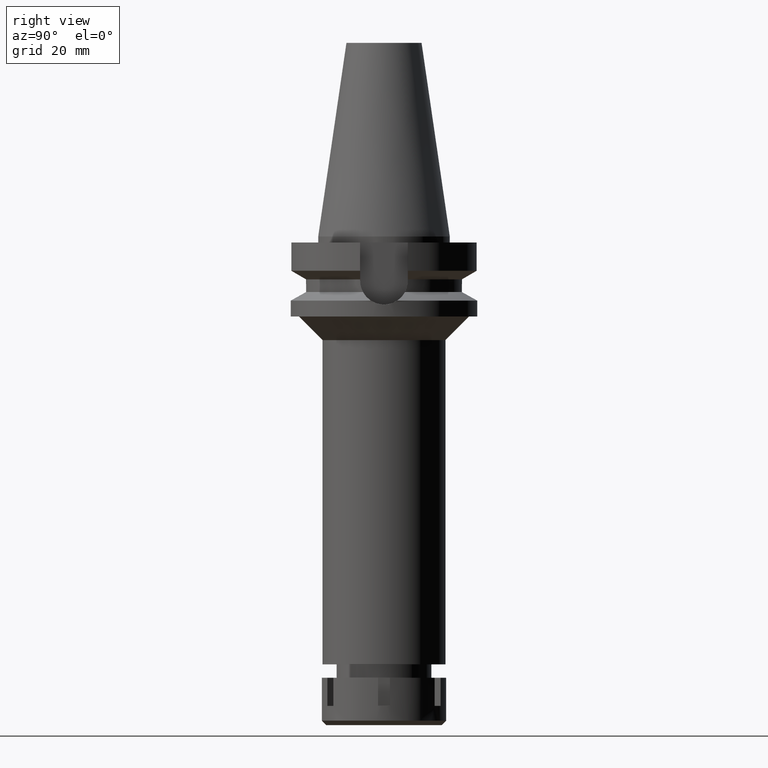
[diagram: clean part render]
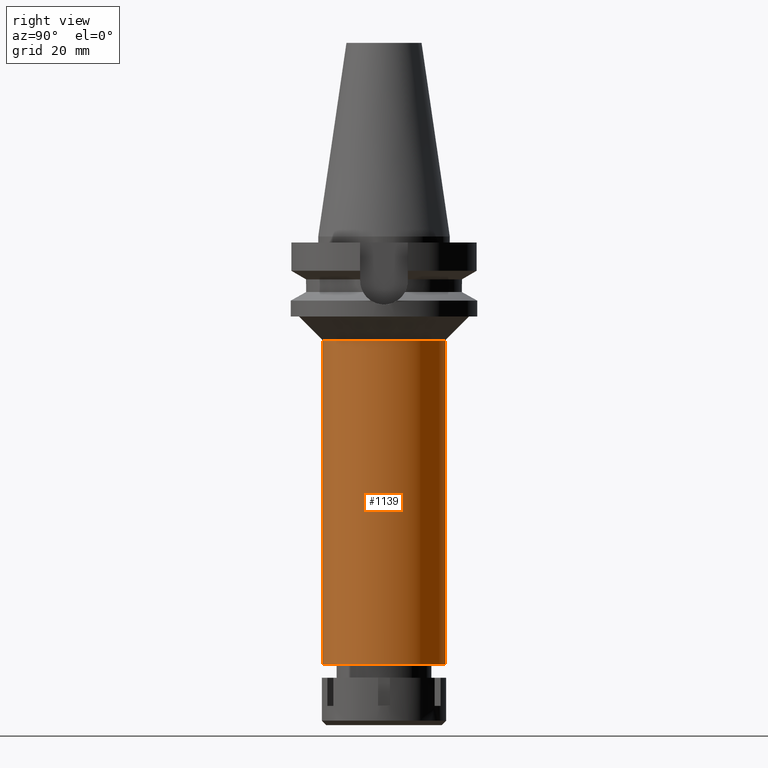
[diagram: same view with one face highlighted and labeled with its STEP entity id]
A machine part, right view. The second image highlights one B-rep face of the part: STEP entity #1139.
In plain terms, the highlighted cylindrical surface (partial cylindrical patch) has radius 20.75 mm, axis along (0, 0, -1).
Its self-contained STEP definition (entity closure, byte-faithful):
#149 = CIRCLE ( 'NONE', #622, 20.75000000000000000 ) ;
#204 = CIRCLE ( 'NONE', #2253, 20.75000000000000000 ) ;
#218 = AXIS2_PLACEMENT_3D ( 'NONE', #722, #999, #3525 ) ;
#321 = DIRECTION ( 'NONE',  ( 0.0000000000000000000, 0.0000000000000000000, 1.000000000000000000 ) ) ;
#361 = CARTESIAN_POINT ( 'NONE',  ( 0.0000000000000000000, 20.75000000000000000, -35.00000000000000000 ) ) ;
#488 = ORIENTED_EDGE ( 'NONE', *, *, #1341, .T. ) ;
#622 = AXIS2_PLACEMENT_3D ( 'NONE', #2786, #2289, #2021 ) ;
#680 = DIRECTION ( 'NONE',  ( 0.0000000000000000000, 0.0000000000000000000, -1.000000000000000000 ) ) ;
#722 = CARTESIAN_POINT ( 'NONE',  ( 0.0000000000000000000, 2.161746529854999700E-14, 76.52000000000001023 ) ) ;
#809 = EDGE_CURVE ( 'NONE', #2911, #2467, #149, .T. ) ;
#999 = DIRECTION ( 'NONE',  ( 0.0000000000000000000, 0.0000000000000000000, -1.000000000000000000 ) ) ;
#1016 = CYLINDRICAL_SURFACE ( 'NONE', #218, 20.75000000000000000 ) ;
#1139 = ADVANCED_FACE ( 'NONE', ( #1858 ), #1016, .T. ) ;
#1257 = VECTOR ( 'NONE', #3477, 1000.000000000000000 ) ;
#1341 = EDGE_CURVE ( 'NONE', #2467, #2717, #3485, .T. ) ;
#1405 = DIRECTION ( 'NONE',  ( 0.0000000000000000000, -1.000000000000000000, 0.0000000000000000000 ) ) ;
#1489 = ORIENTED_EDGE ( 'NONE', *, *, #2876, .F. ) ;
#1516 = ORIENTED_EDGE ( 'NONE', *, *, #2607, .T. ) ;
#1858 = FACE_OUTER_BOUND ( 'NONE', #2783, .T. ) ;
#1927 = CARTESIAN_POINT ( 'NONE',  ( 0.0000000000000000000, -20.75000000000000000, -144.5000000000000000 ) ) ;
#2013 = VERTEX_POINT ( 'NONE', #2146 ) ;
#2021 = DIRECTION ( 'NONE',  ( 0.0000000000000000000, 1.000000000000000000, 0.0000000000000000000 ) ) ;
#2146 = CARTESIAN_POINT ( 'NONE',  ( 0.0000000000000000000, 20.75000000000000000, -144.5000000000000000 ) ) ;
#2218 = CARTESIAN_POINT ( 'NONE',  ( 0.0000000000000000000, 2.161746529854999700E-14, -144.5000000000000000 ) ) ;
#2230 = ORIENTED_EDGE ( 'NONE', *, *, #809, .T. ) ;
#2253 = AXIS2_PLACEMENT_3D ( 'NONE', #2218, #321, #1405 ) ;
#2289 = DIRECTION ( 'NONE',  ( 0.0000000000000000000, 0.0000000000000000000, -1.000000000000000000 ) ) ;
#2467 = VERTEX_POINT ( 'NONE', #3017 ) ;
#2504 = VECTOR ( 'NONE', #680, 1000.000000000000000 ) ;
#2607 = EDGE_CURVE ( 'NONE', #2717, #2013, #204, .T. ) ;
#2636 = CARTESIAN_POINT ( 'NONE',  ( 0.0000000000000000000, 20.75000000000000000, -35.00000000000000000 ) ) ;
#2717 = VERTEX_POINT ( 'NONE', #1927 ) ;
#2783 = EDGE_LOOP ( 'NONE', ( #2230, #488, #1516, #1489 ) ) ;
#2786 = CARTESIAN_POINT ( 'NONE',  ( 0.0000000000000000000, 0.0000000000000000000, -35.00000000000000000 ) ) ;
#2876 = EDGE_CURVE ( 'NONE', #2911, #2013, #2881, .T. ) ;
#2881 = LINE ( 'NONE', #361, #1257 ) ;
#2911 = VERTEX_POINT ( 'NONE', #2636 ) ;
#3017 = CARTESIAN_POINT ( 'NONE',  ( 0.0000000000000000000, -20.75000000000000000, -35.00000000000000000 ) ) ;
#3425 = CARTESIAN_POINT ( 'NONE',  ( 0.0000000000000000000, -20.75000000000000000, -35.00000000000000000 ) ) ;
#3477 = DIRECTION ( 'NONE',  ( 0.0000000000000000000, 0.0000000000000000000, -1.000000000000000000 ) ) ;
#3485 = LINE ( 'NONE', #3425, #2504 ) ;
#3525 = DIRECTION ( 'NONE',  ( 0.0000000000000000000, -1.000000000000000000, 0.0000000000000000000 ) ) ;